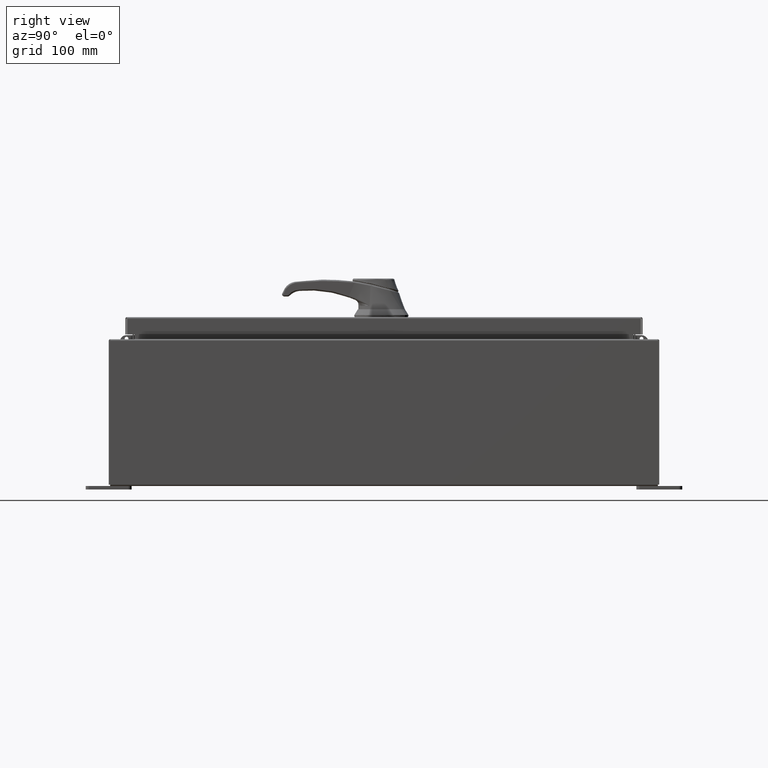
[diagram: clean part render]
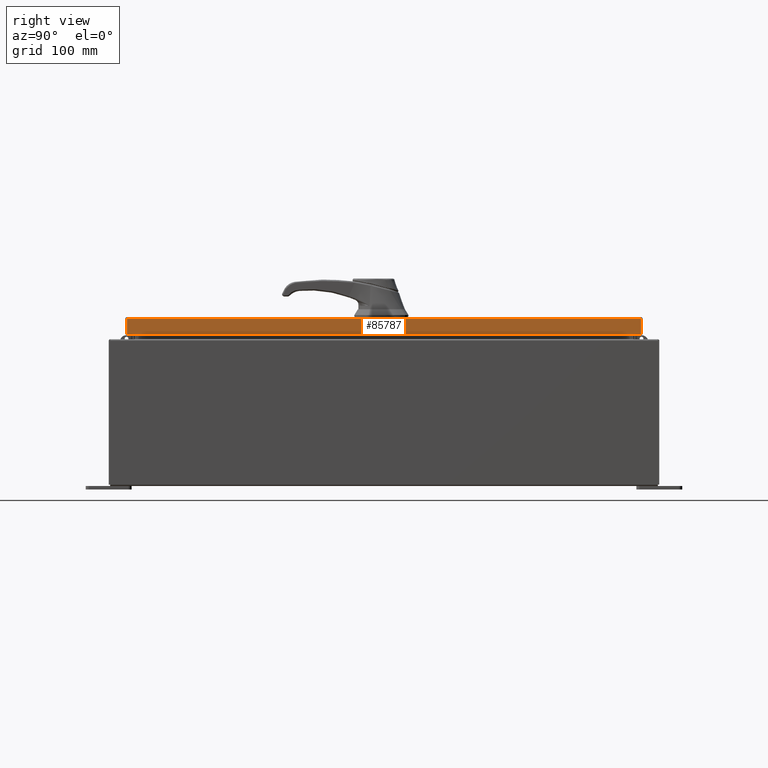
[diagram: same view with one face highlighted and labeled with its STEP entity id]
A machine part, right view. The second image highlights one B-rep face of the part: STEP entity #85787.
In plain terms, the highlighted planar face has unit normal (1, 0, 0).
Its self-contained STEP definition (entity closure, byte-faithful):
#1442 = VERTEX_POINT ( 'NONE', #54009 ) ;
#8161 = ORIENTED_EDGE ( 'NONE', *, *, #60992, .T. ) ;
#12987 = LINE ( 'NONE', #102418, #58655 ) ;
#21378 = LINE ( 'NONE', #96373, #45663 ) ;
#25823 = CARTESIAN_POINT ( 'NONE',  ( 9.078000000000001200, 14.00515786437626900, 1.325422704313589500E-013 ) ) ;
#31307 = DIRECTION ( 'NONE',  ( 0.0000000000000000000, -1.000000000000000000, 0.0000000000000000000 ) ) ;
#32137 = CARTESIAN_POINT ( 'NONE',  ( 9.078000000000001200, 0.0000000000000000000, 3.474477576931518900E-014 ) ) ;
#35084 = ORIENTED_EDGE ( 'NONE', *, *, #60904, .F. ) ;
#35869 = CARTESIAN_POINT ( 'NONE',  ( 9.078000000000004700, -14.00515786437626200, -0.9376999999999997600 ) ) ;
#38528 = DIRECTION ( 'NONE',  ( -3.798629886902798700E-015, -6.982962677686265900E-015, 1.000000000000000000 ) ) ;
#39190 = VECTOR ( 'NONE', #45783, 39.37007874015748100 ) ;
#41347 = DIRECTION ( 'NONE',  ( 1.000000000000000000, 0.0000000000000000000, 3.798629886902798700E-015 ) ) ;
#41687 = DIRECTION ( 'NONE',  ( 1.472581160097703800E-031, -1.000000000000000000, -3.876611314976959400E-017 ) ) ;
#44579 = FACE_OUTER_BOUND ( 'NONE', #86002, .T. ) ;
#45663 = VECTOR ( 'NONE', #41687, 39.37007874015748100 ) ;
#45783 = DIRECTION ( 'NONE',  ( -3.798629886902798700E-015, -6.982962677686265900E-015, 1.000000000000000000 ) ) ;
#54009 = CARTESIAN_POINT ( 'NONE',  ( 9.078000000000001200, 14.00515786437626500, -0.08770000000000052800 ) ) ;
#55293 = AXIS2_PLACEMENT_3D ( 'NONE', #32137, #41347, #105272 ) ;
#56385 = EDGE_CURVE ( 'NONE', #78631, #1442, #109224, .T. ) ;
#58655 = VECTOR ( 'NONE', #38528, 39.37007874015748100 ) ;
#60904 = EDGE_CURVE ( 'NONE', #78631, #84561, #97077, .T. ) ;
#60992 = EDGE_CURVE ( 'NONE', #1442, #82419, #21378, .T. ) ;
#72781 = VECTOR ( 'NONE', #31307, 39.37007874015748100 ) ;
#78631 = VERTEX_POINT ( 'NONE', #106979 ) ;
#82419 = VERTEX_POINT ( 'NONE', #104402 ) ;
#84561 = VERTEX_POINT ( 'NONE', #35869 ) ;
#85787 = ADVANCED_FACE ( 'NONE', ( #44579 ), #86824, .T. ) ;
#85991 = CARTESIAN_POINT ( 'NONE',  ( 9.078000000000004700, -14.09399999999999900, -0.9376999999999997600 ) ) ;
#86002 = EDGE_LOOP ( 'NONE', ( #111620, #35084, #112764, #8161 ) ) ;
#86824 = PLANE ( 'NONE',  #55293 ) ;
#87274 = EDGE_CURVE ( 'NONE', #84561, #82419, #12987, .T. ) ;
#96373 = CARTESIAN_POINT ( 'NONE',  ( 9.078000000000001200, 3.399788123236161000E-018, -0.08770000000000052800 ) ) ;
#97077 = LINE ( 'NONE', #85991, #72781 ) ;
#102418 = CARTESIAN_POINT ( 'NONE',  ( 9.078000000000001200, -14.00515786437626900, -0.07469999999999972500 ) ) ;
#104402 = CARTESIAN_POINT ( 'NONE',  ( 9.078000000000001200, -14.00515786437626900, -0.08770000000000106900 ) ) ;
#105272 = DIRECTION ( 'NONE',  ( 3.798629886902798700E-015, 0.0000000000000000000, -1.000000000000000000 ) ) ;
#106979 = CARTESIAN_POINT ( 'NONE',  ( 9.078000000000004700, 14.00515786437627200, -0.9376999999999997600 ) ) ;
#109224 = LINE ( 'NONE', #25823, #39190 ) ;
#111620 = ORIENTED_EDGE ( 'NONE', *, *, #87274, .F. ) ;
#112764 = ORIENTED_EDGE ( 'NONE', *, *, #56385, .T. ) ;